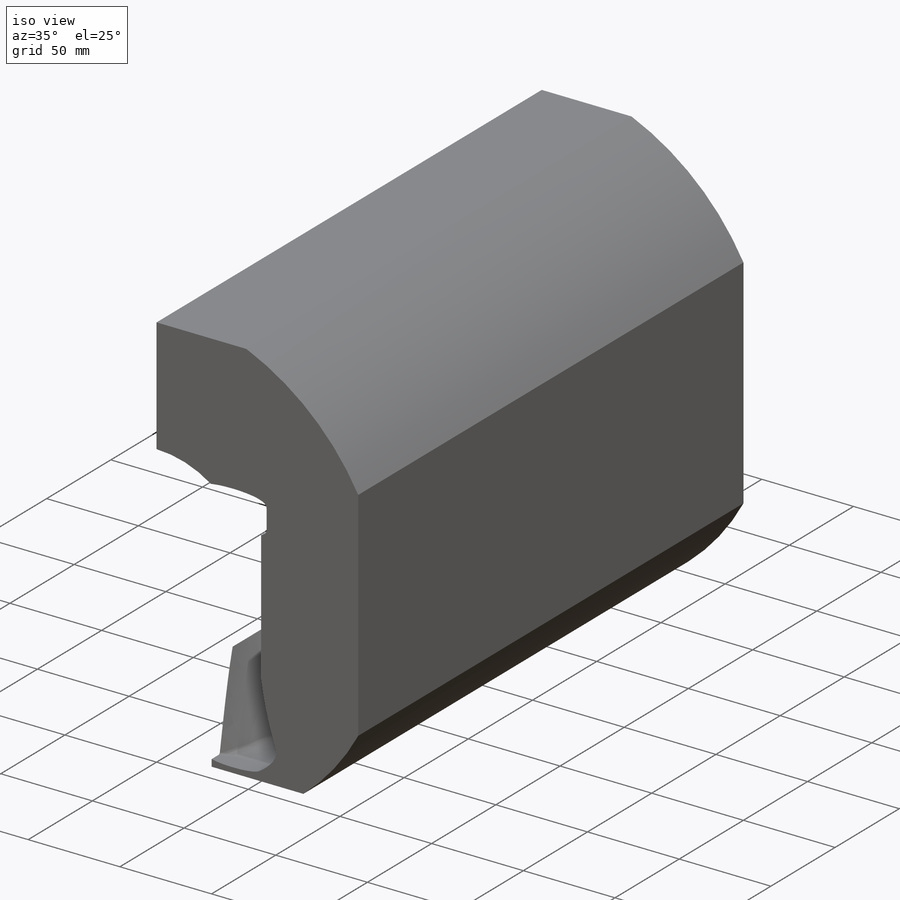
[diagram: iso view]
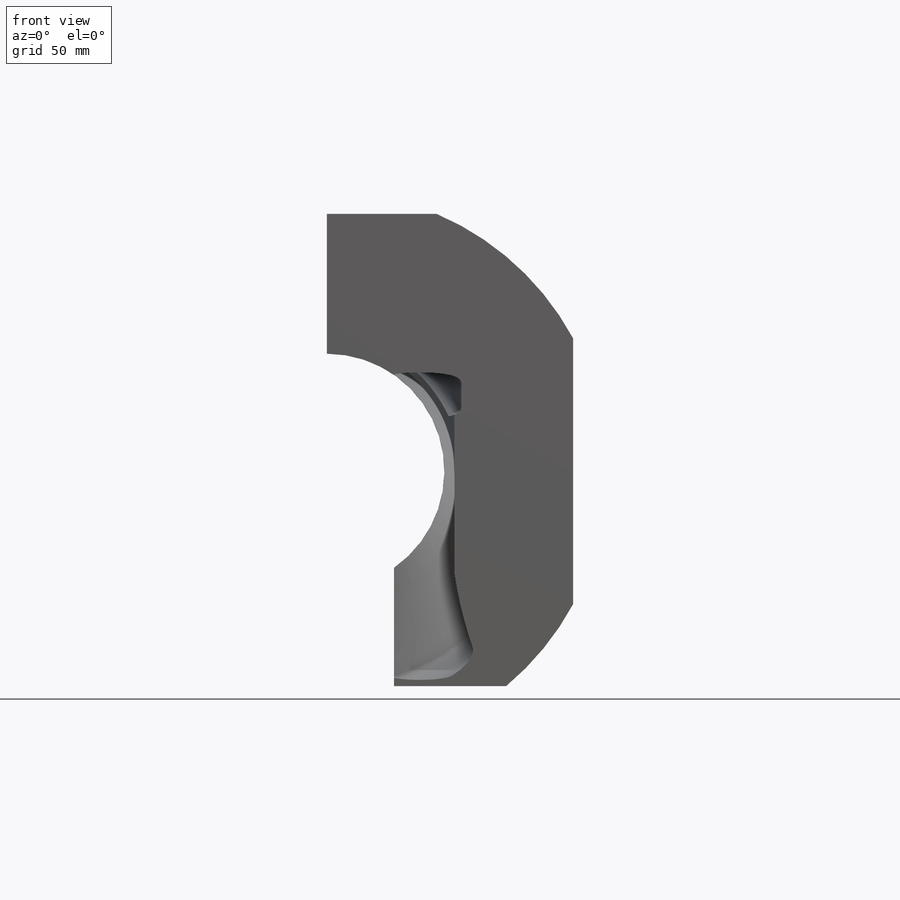
[diagram: front view]
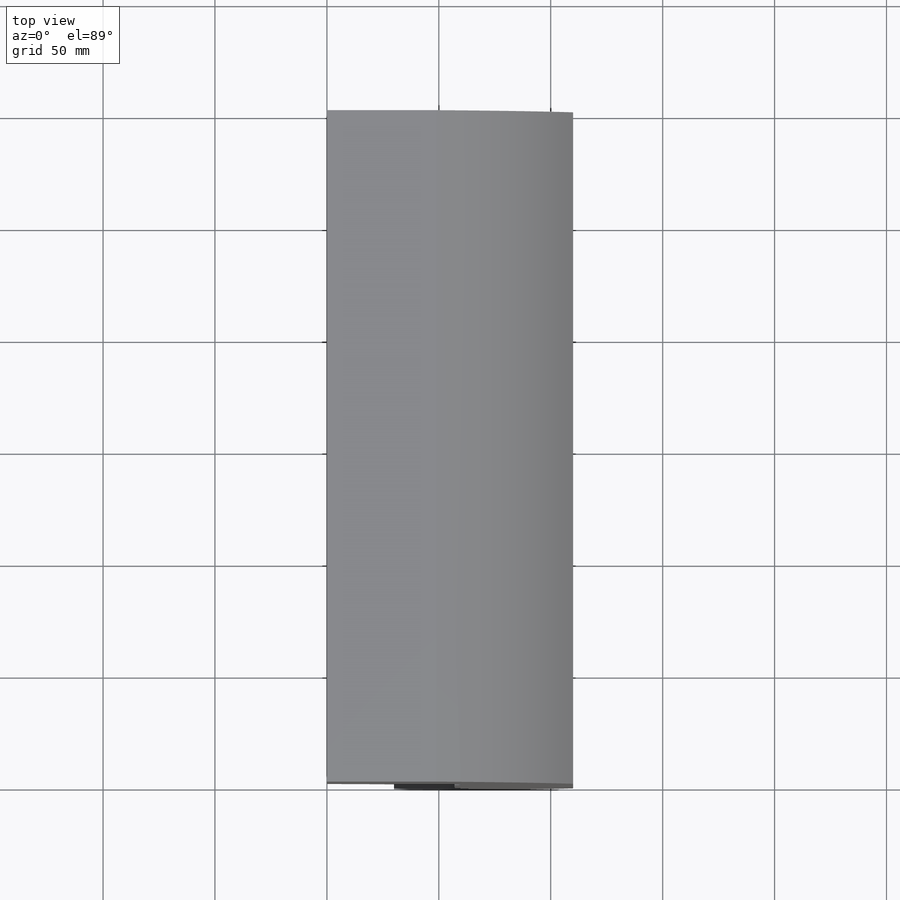
[diagram: top view]
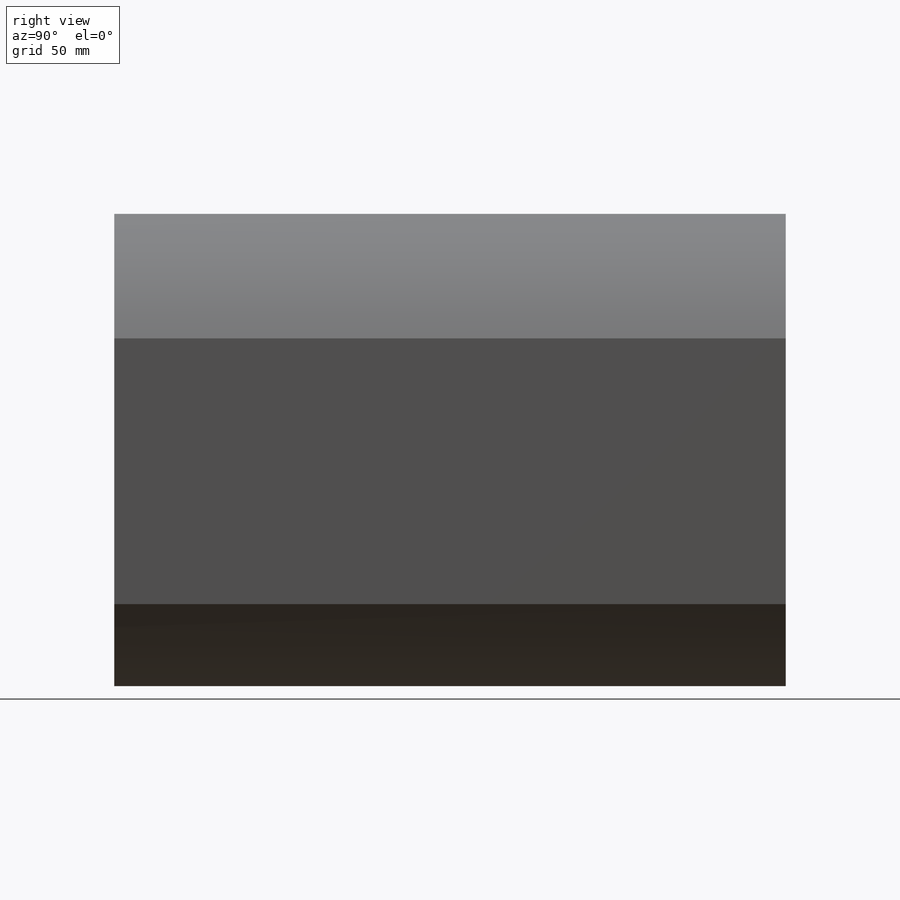
[diagram: right view]
SOLIDWORKS PART (.sldprt)
format: sldprt  version: not decoded by parser v0  size: 1,068,544 bytes
history: native  units: mm
features: sketch x10, plane x7, sweep x4, cut_extrude x2, revolve x2, move_body x2, material x1, extrude x1, helix x1 (+10 scaffold rows collapsed)
feature tree (40):
  scaffold x10  (default folders/planes/origin — collapsed)
  material  "PA6 Guß"
  plane  "Vorderansicht-XY"
  plane  "Draufsicht-ZX"
  plane  "Seitenansicht-YZ"
  sketch  "Skizze1"  dims[D3=250.0mm D1=250.0mm D2=250.0mm]
  extrude  "Aufsatz-Linear austragen1"  Depth=300mm
  sketch  "Skizze2"  dims[c1.D1=60.0mm c1.D2=50.0mm c2.D1=60.0mm]
  cut_extrude  "Schnitt-Linear austragen1"  [1 undecoded]
  plane  "Ebene-Helix"  Offset=22mm
  plane  "Ebene-Basis-Röhrchen"  Offset=12mm
  plane  "Ebene-Neigung"
  plane  "Ebene-Röhrchen"
  sketch  "Skizze3"  dims[c1.D1=54.0mm c1.D8=1.0mm c1.D4=3.0mm c1.D5=2.0mm c1.D2=44.0mm c1.D3=32.0mm c2.D4=8.0mm c2.D5=3.0mm c2.D6=134.0mm c2.D7=60.0mm c2.D3=30.0mm c3.D7=90.0mm]
  revolve  "Röhrchen"  Angle=360deg
  move_body  "Röhrchen-Verschieben/Kopieren1"
  sketch  "Skizze4"  dims[D1=2.0mm D2=15.0mm D3=18.5mm D4=3.0mm]
  revolve  "Wulst"  Angle=360deg
  move_body  "Wulst-Verschieben/Kopieren2"
  sketch  "Skizze5"  dims[D1=84.0mm]
  helix  "Spirale/Helix1"  Pitch=150mm
  sketch  "3D-Skizze1"  dims[D1=50.0mm]
  sketch  "3D-Skizze2"  dims[D1=50.0mm D2=~27.554479mm D3=42.0mm]
  sketch  "3D-Skizze3"
  sketch  "3D-Skizze4"
  sweep  "Schnitt-Austragung1"
  sweep  "Schnitt-Austragung2"
  sweep  "Schnitt-Austragung3"
  sweep  "Schnitt-Austragung4"
  sketch  "Skizze6"  dims[c1.D1=5.0mm c1.D2=115.0mm c1.D3=110.0mm c2.D1=96.0mm]
  cut_extrude  "Schnitt-Linear austragen2"  [1 undecoded]
decode coverage: 12 of 22 modeling features carry decoded parameters
note: ~ marks probable driven/reference dimensions
note: 2 parameter values undecoded
summary: profile_refs inferred from adjacent sketches, not decoded
note: suppression state not decoded; provenance and decode notes live in map.json
